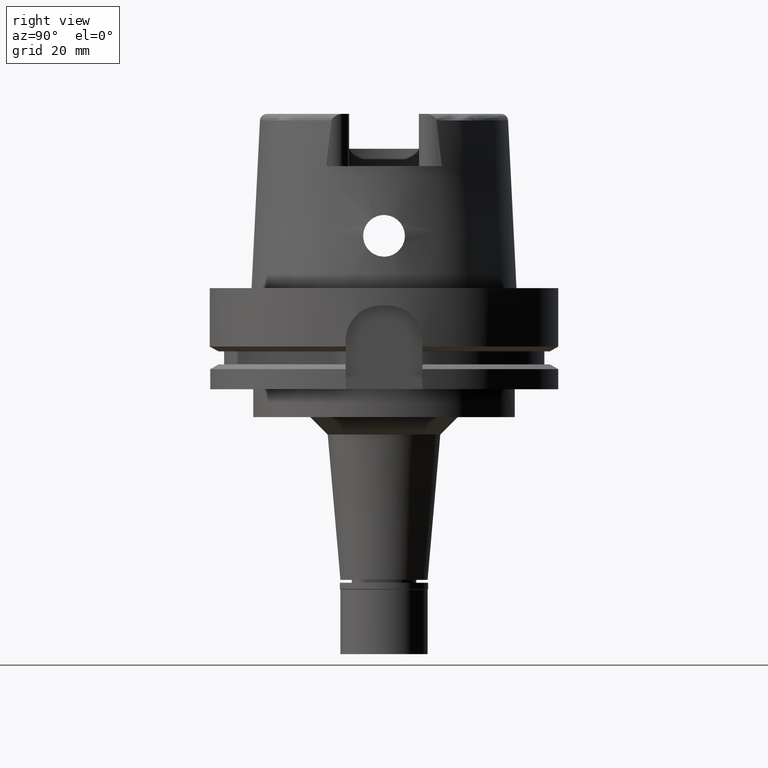
[diagram: clean part render]
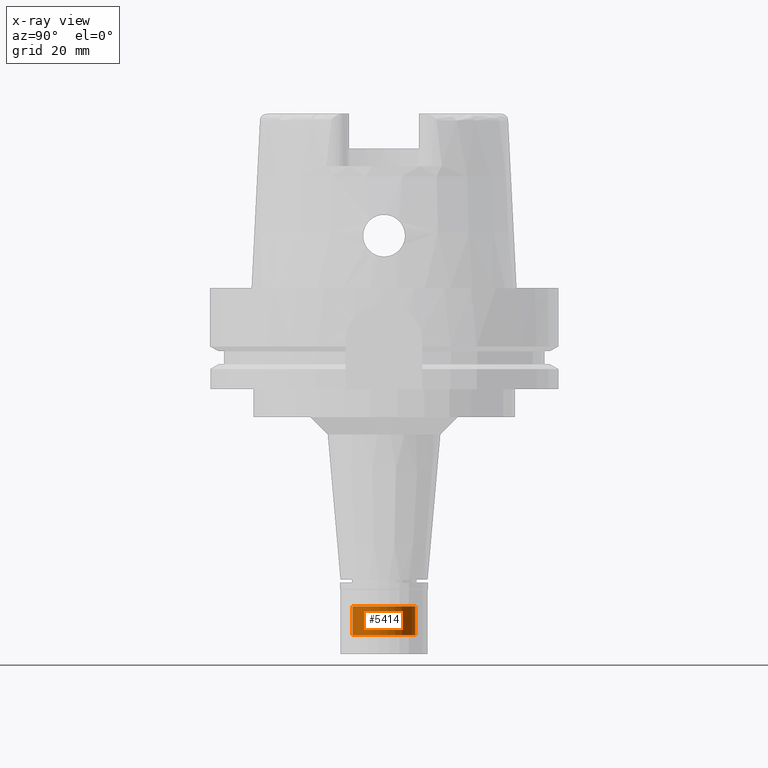
[diagram: x-ray — body ghosted, one internal face saturated and labeled with its STEP entity id]
A machine part, right view, then the same camera in x-ray: the body is ghosted and one INTERNAL B-rep face — a face not visible from any outside direction — is saturated and labeled: STEP entity #5414.
In plain terms, the highlighted cylindrical surface (edge-blend (fillet) strip) has radius 9 mm, axis along (0, 0, -1).
Its self-contained STEP definition (entity closure, byte-faithful):
#15 = DIRECTION ( 'NONE',  ( 0.0000000000000000000, -1.000000000000000000, 0.0000000000000000000 ) ) ;
#131 = CARTESIAN_POINT ( 'NONE',  ( 0.0000000000000000000, -9.000000000000000000, -6.799999999999999822 ) ) ;
#215 = CIRCLE ( 'NONE', #221, 9.000000000000000000 ) ;
#221 = AXIS2_PLACEMENT_3D ( 'NONE', #1322, #924, #2407 ) ;
#285 = VERTEX_POINT ( 'NONE', #332 ) ;
#332 = CARTESIAN_POINT ( 'NONE',  ( 0.0000000000000000000, 9.000000000000000000, -6.799999999999999822 ) ) ;
#356 = CARTESIAN_POINT ( 'NONE',  ( 0.0000000000000000000, 0.0000000000000000000, 0.0000000000000000000 ) ) ;
#656 = LINE ( 'NONE', #2792, #1939 ) ;
#837 = VERTEX_POINT ( 'NONE', #4558 ) ;
#924 = DIRECTION ( 'NONE',  ( 0.0000000000000000000, 0.0000000000000000000, 1.000000000000000000 ) ) ;
#1059 = EDGE_CURVE ( 'NONE', #5115, #837, #1687, .T. ) ;
#1218 = FACE_OUTER_BOUND ( 'NONE', #2170, .T. ) ;
#1322 = CARTESIAN_POINT ( 'NONE',  ( 0.0000000000000000000, 0.0000000000000000000, -6.799999999999999822 ) ) ;
#1505 = ORIENTED_EDGE ( 'NONE', *, *, #4041, .T. ) ;
#1533 = DIRECTION ( 'NONE',  ( 0.0000000000000000000, 1.000000000000000000, 0.0000000000000000000 ) ) ;
#1687 = CIRCLE ( 'NONE', #4834, 9.000000000000000000 ) ;
#1737 = DIRECTION ( 'NONE',  ( 0.0000000000000000000, 0.0000000000000000000, -1.000000000000000000 ) ) ;
#1939 = VECTOR ( 'NONE', #4923, 1000.000000000000000 ) ;
#2170 = EDGE_LOOP ( 'NONE', ( #2950, #1505, #3703, #3951 ) ) ;
#2192 = CARTESIAN_POINT ( 'NONE',  ( 0.0000000000000000000, 9.000000000000000000, -15.00000000000000000 ) ) ;
#2407 = DIRECTION ( 'NONE',  ( 0.0000000000000000000, -1.000000000000000000, 0.0000000000000000000 ) ) ;
#2436 = DIRECTION ( 'NONE',  ( 0.0000000000000000000, 0.0000000000000000000, -1.000000000000000000 ) ) ;
#2792 = CARTESIAN_POINT ( 'NONE',  ( 0.0000000000000000000, -9.000000000000000000, -15.00000000000000000 ) ) ;
#2950 = ORIENTED_EDGE ( 'NONE', *, *, #1059, .T. ) ;
#2981 = EDGE_CURVE ( 'NONE', #5115, #285, #3120, .T. ) ;
#3002 = VECTOR ( 'NONE', #4843, 1000.000000000000000 ) ;
#3051 = VERTEX_POINT ( 'NONE', #131 ) ;
#3120 = LINE ( 'NONE', #3495, #3002 ) ;
#3495 = CARTESIAN_POINT ( 'NONE',  ( 0.0000000000000000000, 9.000000000000000000, -15.00000000000000000 ) ) ;
#3703 = ORIENTED_EDGE ( 'NONE', *, *, #4015, .T. ) ;
#3873 = CYLINDRICAL_SURFACE ( 'NONE', #4901, 9.000000000000000000 ) ;
#3951 = ORIENTED_EDGE ( 'NONE', *, *, #2981, .F. ) ;
#4015 = EDGE_CURVE ( 'NONE', #3051, #285, #215, .T. ) ;
#4035 = CARTESIAN_POINT ( 'NONE',  ( 0.0000000000000000000, 0.0000000000000000000, -15.00000000000000000 ) ) ;
#4041 = EDGE_CURVE ( 'NONE', #837, #3051, #656, .T. ) ;
#4558 = CARTESIAN_POINT ( 'NONE',  ( 0.0000000000000000000, -9.000000000000000000, -15.00000000000000000 ) ) ;
#4834 = AXIS2_PLACEMENT_3D ( 'NONE', #4035, #2436, #1533 ) ;
#4843 = DIRECTION ( 'NONE',  ( 0.0000000000000000000, 0.0000000000000000000, 1.000000000000000000 ) ) ;
#4901 = AXIS2_PLACEMENT_3D ( 'NONE', #356, #1737, #15 ) ;
#4923 = DIRECTION ( 'NONE',  ( 0.0000000000000000000, 0.0000000000000000000, 1.000000000000000000 ) ) ;
#5115 = VERTEX_POINT ( 'NONE', #2192 ) ;
#5414 = ADVANCED_FACE ( 'NONE', ( #1218 ), #3873, .F. ) ;